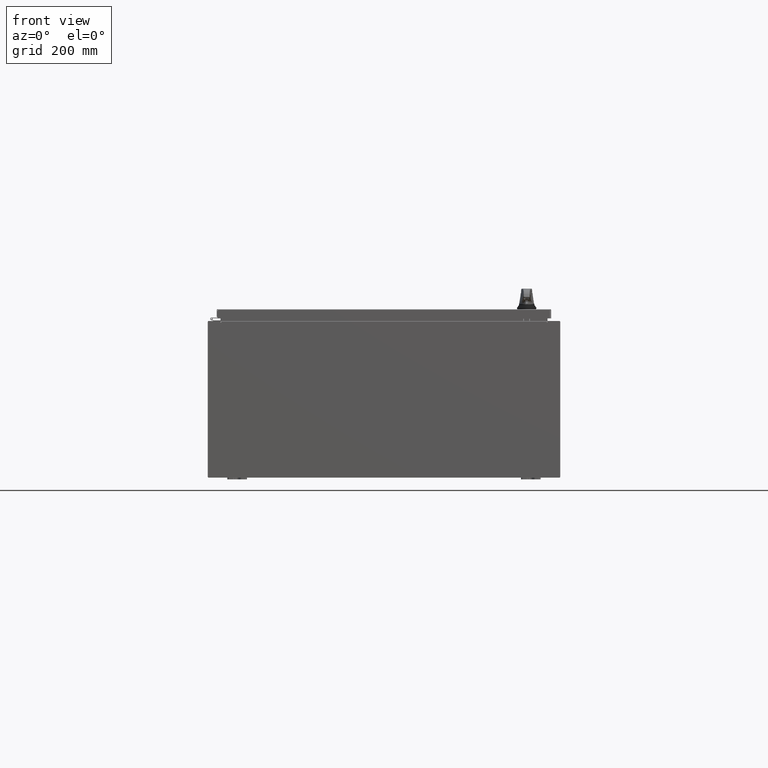
[diagram: clean part render]
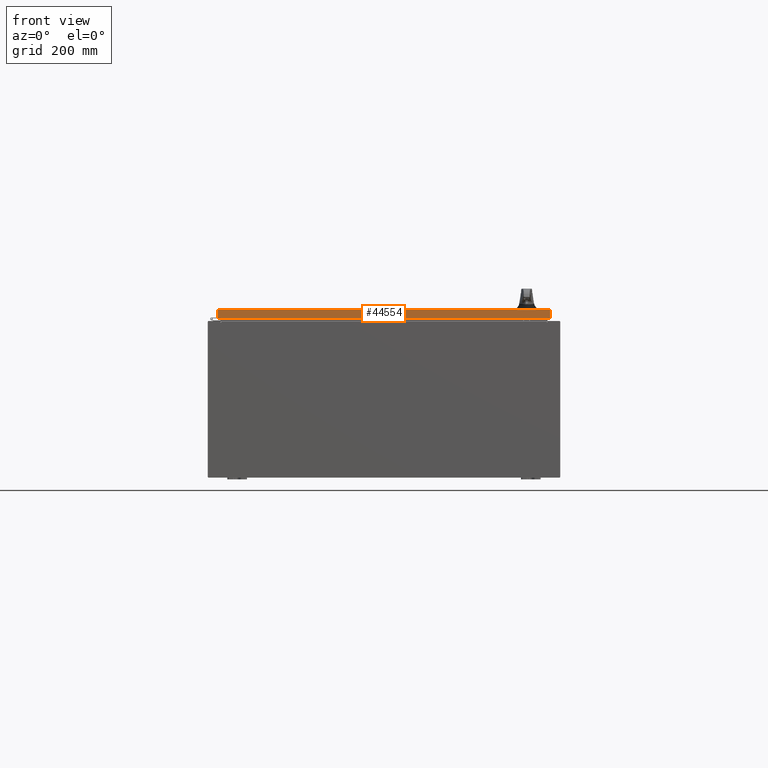
[diagram: same view with one face highlighted and labeled with its STEP entity id]
A machine part, front view. The second image highlights one B-rep face of the part: STEP entity #44554.
In plain terms, the highlighted planar face has unit normal (-0, 1, -0).
Its self-contained STEP definition (entity closure, byte-faithful):
#9590 = CARTESIAN_POINT ( 'NONE',  ( -16.98915786437626700, -29.09400000000000100, -0.08769999999999550400 ) ) ;
#15000 = CARTESIAN_POINT ( 'NONE',  ( 16.98915786437627100, -29.09400000000000100, -0.08769999999999550400 ) ) ;
#15999 = CARTESIAN_POINT ( 'NONE',  ( -16.98915786437626700, -29.09400000000000500, -0.9376999999999954300 ) ) ;
#16491 = LINE ( 'NONE', #127880, #78767 ) ;
#16520 = EDGE_LOOP ( 'NONE', ( #17964, #105209, #54457, #57728 ) ) ;
#17861 = LINE ( 'NONE', #121587, #43793 ) ;
#17964 = ORIENTED_EDGE ( 'NONE', *, *, #79832, .F. ) ;
#25197 = LINE ( 'NONE', #28209, #77031 ) ;
#27796 = DIRECTION ( 'NONE',  ( -0.0000000000000000000, -5.064839849203732200E-015, -1.000000000000000000 ) ) ;
#28209 = CARTESIAN_POINT ( 'NONE',  ( 17.07800000000000300, -29.09400000000000500, -0.9376999999999997600 ) ) ;
#30391 = PLANE ( 'NONE',  #36136 ) ;
#36136 = AXIS2_PLACEMENT_3D ( 'NONE', #107745, #41505, #118811 ) ;
#36606 = VECTOR ( 'NONE', #27796, 39.37007874015748100 ) ;
#38947 = CARTESIAN_POINT ( 'NONE',  ( 16.98915786437627100, -29.09400000000000100, -0.07469999999999962800 ) ) ;
#41505 = DIRECTION ( 'NONE',  ( -6.481495528880677800E-031, 1.000000000000000000, -5.064839849203732200E-015 ) ) ;
#43054 = EDGE_CURVE ( 'NONE', #61650, #82595, #65921, .T. ) ;
#43793 = VECTOR ( 'NONE', #55302, 39.37007874015748100 ) ;
#44554 = ADVANCED_FACE ( 'NONE', ( #117554 ), #30391, .F. ) ;
#54457 = ORIENTED_EDGE ( 'NONE', *, *, #76656, .F. ) ;
#55302 = DIRECTION ( 'NONE',  ( 0.0000000000000000000, -5.064839849203732200E-015, -1.000000000000000000 ) ) ;
#57728 = ORIENTED_EDGE ( 'NONE', *, *, #43054, .F. ) ;
#61061 = DIRECTION ( 'NONE',  ( 1.000000000000000000, 6.481495528880679500E-031, -3.349804276043092600E-045 ) ) ;
#61650 = VERTEX_POINT ( 'NONE', #15000 ) ;
#65921 = LINE ( 'NONE', #38947, #36606 ) ;
#76656 = EDGE_CURVE ( 'NONE', #82595, #108749, #25197, .T. ) ;
#77031 = VECTOR ( 'NONE', #116630, 39.37007874015748100 ) ;
#78767 = VECTOR ( 'NONE', #61061, 39.37007874015748100 ) ;
#79832 = EDGE_CURVE ( 'NONE', #128076, #61650, #16491, .T. ) ;
#82595 = VERTEX_POINT ( 'NONE', #132874 ) ;
#105209 = ORIENTED_EDGE ( 'NONE', *, *, #135484, .T. ) ;
#107745 = CARTESIAN_POINT ( 'NONE',  ( 1.885726309172544400E-029, -29.09400000000000100, 1.476172642287449700E-013 ) ) ;
#108749 = VERTEX_POINT ( 'NONE', #15999 ) ;
#116630 = DIRECTION ( 'NONE',  ( -1.000000000000000000, -8.758115402030106700E-047, 1.279703943630056600E-016 ) ) ;
#117554 = FACE_OUTER_BOUND ( 'NONE', #16520, .T. ) ;
#118811 = DIRECTION ( 'NONE',  ( 0.0000000000000000000, 5.064839849203732200E-015, 1.000000000000000000 ) ) ;
#121587 = CARTESIAN_POINT ( 'NONE',  ( -16.98915786437626700, -29.09400000000000100, 1.476172642287449700E-013 ) ) ;
#127880 = CARTESIAN_POINT ( 'NONE',  ( 17.07800000000000300, -29.09400000000000100, -0.08769999999999550400 ) ) ;
#128076 = VERTEX_POINT ( 'NONE', #9590 ) ;
#132874 = CARTESIAN_POINT ( 'NONE',  ( 16.98915786437627100, -29.09400000000000500, -0.9376999999999997600 ) ) ;
#135484 = EDGE_CURVE ( 'NONE', #128076, #108749, #17861, .T. ) ;